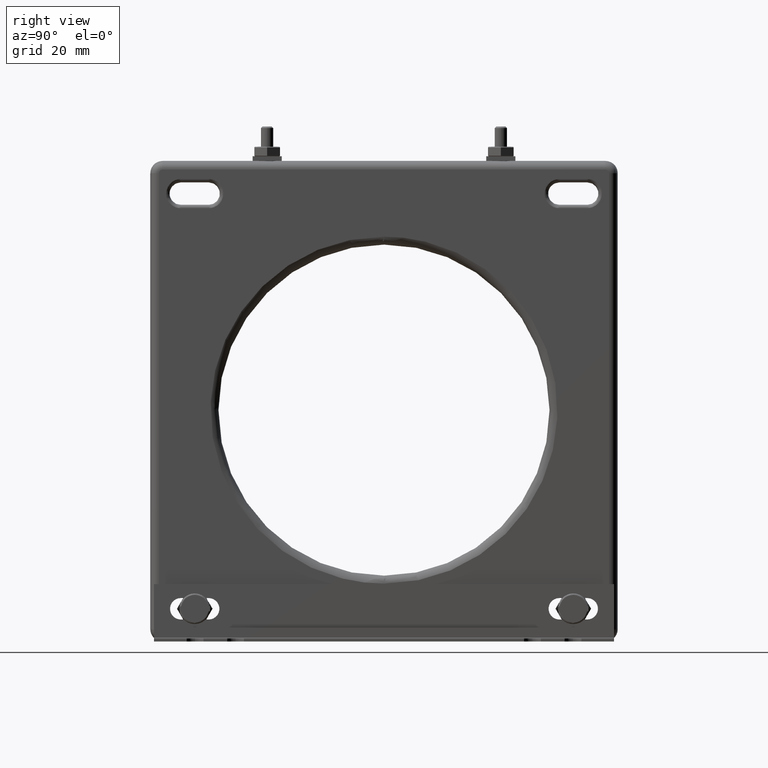
[diagram: clean part render]
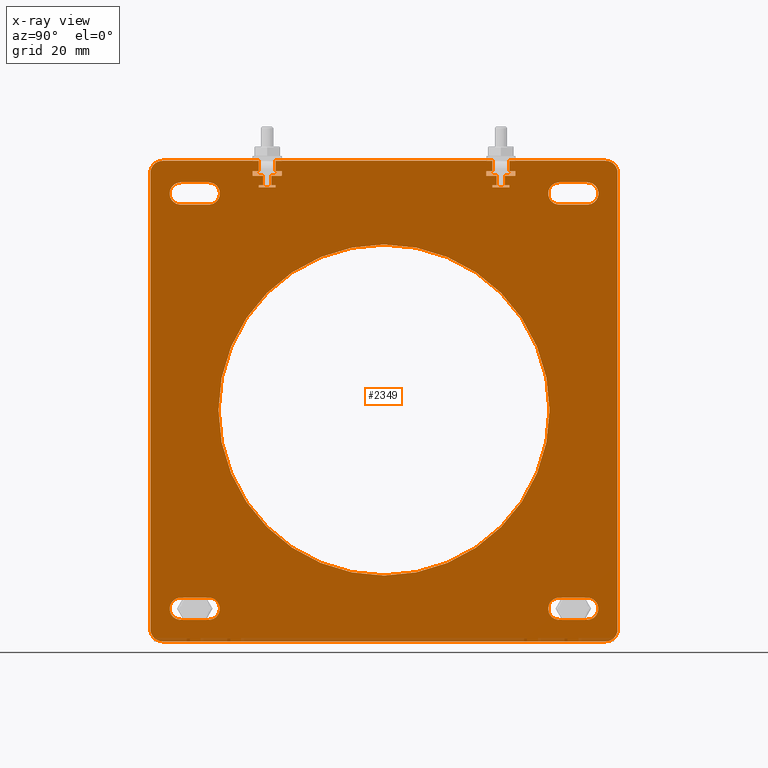
[diagram: x-ray — body ghosted, one internal face saturated and labeled with its STEP entity id]
A machine part, right view, then the same camera in x-ray: the body is ghosted and one INTERNAL B-rep face — a face not visible from any outside direction — is saturated and labeled: STEP entity #2349.
In plain terms, the highlighted planar face has unit normal (1, -0, 0).
Its self-contained STEP definition (entity closure, byte-faithful):
#27 = VERTEX_POINT ( 'NONE', #3057 ) ;
#37 = VECTOR ( 'NONE', #9738, 39.37007874015748143 ) ;
#195 = EDGE_CURVE ( 'NONE', #6412, #8401, #9998, .T. ) ;
#208 = CARTESIAN_POINT ( 'NONE',  ( 0.6122047244105642827, -2.250787401574803503, 2.923324115572861981 ) ) ;
#215 = ORIENTED_EDGE ( 'NONE', *, *, #12208, .T. ) ;
#238 = LINE ( 'NONE', #5233, #10344 ) ;
#252 = AXIS2_PLACEMENT_3D ( 'NONE', #2736, #7990, #8879 ) ;
#282 = CARTESIAN_POINT ( 'NONE',  ( 0.6122047244094488416, 1.312992125984252079, 0.000000000000000000 ) ) ;
#327 = DIRECTION ( 'NONE',  ( -0.000000000000000000, -0.000000000000000000, 1.000000000000000000 ) ) ;
#369 = EDGE_CURVE ( 'NONE', #3639, #3918, #12381, .T. ) ;
#388 = DIRECTION ( 'NONE',  ( -0.000000000000000000, -1.000000000000000000, -0.000000000000000000 ) ) ;
#395 = VERTEX_POINT ( 'NONE', #10206 ) ;
#441 = VERTEX_POINT ( 'NONE', #7584 ) ;
#469 = VECTOR ( 'NONE', #2078, 39.37007874015748143 ) ;
#478 = CARTESIAN_POINT ( 'NONE',  ( 0.6122047244094488416, 1.312992125984252079, 3.066141732283464094 ) ) ;
#479 = DIRECTION ( 'NONE',  ( 0.000000000000000000, 0.000000000000000000, 1.000000000000000000 ) ) ;
#654 = CARTESIAN_POINT ( 'NONE',  ( 0.6122047244094488416, -1.391893462852389796, 3.066141732283464094 ) ) ;
#689 = VERTEX_POINT ( 'NONE', #2115 ) ;
#705 = ORIENTED_EDGE ( 'NONE', *, *, #6821, .T. ) ;
#731 = VERTEX_POINT ( 'NONE', #4020 ) ;
#745 = VECTOR ( 'NONE', #13287, 39.37007874015748143 ) ;
#749 = VERTEX_POINT ( 'NONE', #11194 ) ;
#798 = LINE ( 'NONE', #4967, #1383 ) ;
#809 = LINE ( 'NONE', #12345, #1412 ) ;
#818 = CARTESIAN_POINT ( 'NONE',  ( 0.6122047244094488416, 1.687007874015748143, 3.007086614173228423 ) ) ;
#827 = VERTEX_POINT ( 'NONE', #5521 ) ;
#841 = VECTOR ( 'NONE', #11479, 39.37007874015748143 ) ;
#869 = LINE ( 'NONE', #2104, #745 ) ;
#965 = VECTOR ( 'NONE', #2184, 39.37007874015748143 ) ;
#970 = VECTOR ( 'NONE', #12770, 39.37007874015748143 ) ;
#977 = EDGE_LOOP ( 'NONE', ( #4155, #4124 ) ) ;
#1052 = EDGE_CURVE ( 'NONE', #12802, #7217, #869, .T. ) ;
#1133 = CIRCLE ( 'NONE', #3747, 0.1437178163602570724 ) ;
#1148 = LINE ( 'NONE', #3201, #3144 ) ;
#1173 = EDGE_CURVE ( 'NONE', #3661, #7647, #2488, .T. ) ;
#1175 = DIRECTION ( 'NONE',  ( 0.000000000000000000, 1.000000000000000000, 0.000000000000000000 ) ) ;
#1189 = ORIENTED_EDGE ( 'NONE', *, *, #2338, .T. ) ;
#1194 = LINE ( 'NONE', #5366, #7497 ) ;
#1254 = CARTESIAN_POINT ( 'NONE',  ( 0.6122047244105642827, -2.250787401574799507, -2.406597144269654542 ) ) ;
#1288 = LINE ( 'NONE', #11734, #13335 ) ;
#1307 = ORIENTED_EDGE ( 'NONE', *, *, #4216, .T. ) ;
#1343 = VECTOR ( 'NONE', #7562, 39.37007874015748143 ) ;
#1344 = VECTOR ( 'NONE', #327, 39.37007874015748143 ) ;
#1355 = VERTEX_POINT ( 'NONE', #5640 ) ;
#1361 = EDGE_CURVE ( 'NONE', #3448, #7046, #2631, .T. ) ;
#1383 = VECTOR ( 'NONE', #11312, 39.37007874015748143 ) ;
#1408 = LINE ( 'NONE', #2373, #10510 ) ;
#1412 = VECTOR ( 'NONE', #11465, 39.37007874015748143 ) ;
#1419 = CARTESIAN_POINT ( 'NONE',  ( 0.6122047244116831655, 2.609055118110235938, 2.635888482852344783 ) ) ;
#1435 = CARTESIAN_POINT ( 'NONE',  ( 0.6122047244094488416, 1.446189224673872786, 3.007086614173228423 ) ) ;
#1462 = VERTEX_POINT ( 'NONE', #12045 ) ;
#1472 = VERTEX_POINT ( 'NONE', #2698 ) ;
#1488 = LINE ( 'NONE', #6689, #10785 ) ;
#1500 = DIRECTION ( 'NONE',  ( -1.000000000000000000, 0.000000000000000000, 0.000000000000000000 ) ) ;
#1533 = EDGE_CURVE ( 'NONE', #8344, #6412, #2399, .T. ) ;
#1586 = FACE_BOUND ( 'NONE', #10187, .T. ) ;
#1595 = VERTEX_POINT ( 'NONE', #12452 ) ;
#1649 = EDGE_CURVE ( 'NONE', #11976, #9718, #10477, .T. ) ;
#1670 = CARTESIAN_POINT ( 'NONE',  ( 0.6122047244098194341, 2.250787401574803503, 2.923324115572870863 ) ) ;
#1699 = EDGE_CURVE ( 'NONE', #827, #731, #4196, .T. ) ;
#1718 = DIRECTION ( 'NONE',  ( 1.000000000000000000, 0.000000000000000000, 0.000000000000000000 ) ) ;
#1752 = CARTESIAN_POINT ( 'NONE',  ( 0.6122047244098194341, 2.250787401574803503, -2.694032776990192612 ) ) ;
#1820 = VERTEX_POINT ( 'NONE', #2109 ) ;
#1836 = EDGE_CURVE ( 'NONE', #7046, #3086, #7159, .T. ) ;
#1860 = DIRECTION ( 'NONE',  ( -1.000000000000000000, 0.000000000000000000, 0.000000000000000000 ) ) ;
#1868 = EDGE_CURVE ( 'NONE', #12046, #3448, #12743, .T. ) ;
#1889 = VECTOR ( 'NONE', #9384, 39.37007874015748143 ) ;
#1894 = CIRCLE ( 'NONE', #4507, 0.1574287678709242466 ) ;
#1968 = CARTESIAN_POINT ( 'NONE',  ( 0.6122047244094488416, 8.195543980992795572E-16, 3.066141732283464094 ) ) ;
#1979 = DIRECTION ( 'NONE',  ( 0.000000000000000000, 0.000000000000000000, -1.000000000000000000 ) ) ;
#2020 = DIRECTION ( 'NONE',  ( -1.000000000000000000, 0.000000000000000000, 0.000000000000000000 ) ) ;
#2025 = ORIENTED_EDGE ( 'NONE', *, *, #8714, .T. ) ;
#2078 = DIRECTION ( 'NONE',  ( 0.000000000000000000, 1.000000000000000000, 0.000000000000000000 ) ) ;
#2079 = ORIENTED_EDGE ( 'NONE', *, *, #4535, .T. ) ;
#2104 = CARTESIAN_POINT ( 'NONE',  ( 0.6122047244094488416, -1.312992125984248082, 0.000000000000000000 ) ) ;
#2109 = CARTESIAN_POINT ( 'NONE',  ( 0.6122047244094488416, -1.608106537147602211, 3.199239791492975105 ) ) ;
#2115 = CARTESIAN_POINT ( 'NONE',  ( 0.6122047244094488416, -1.553810775326125437, 3.007086614173228423 ) ) ;
#2121 = CARTESIAN_POINT ( 'NONE',  ( 0.6122047244098194341, 2.842519685039371691, 3.199239791492984430 ) ) ;
#2153 = DIRECTION ( 'NONE',  ( 0.000000000000000000, 1.000000000000000000, 0.000000000000000000 ) ) ;
#2184 = DIRECTION ( 'NONE',  ( -0.000000000000000000, -0.000000000000000000, 1.000000000000000000 ) ) ;
#2215 = CIRCLE ( 'NONE', #252, 0.1437178163602761960 ) ;
#2240 = CARTESIAN_POINT ( 'NONE',  ( 0.6122047244094488416, 8.195543980992795572E-16, 3.199239791492976437 ) ) ;
#2266 = DIRECTION ( 'NONE',  ( -0.000000000000000000, -0.000000000000000000, 1.000000000000000000 ) ) ;
#2277 = VERTEX_POINT ( 'NONE', #1254 ) ;
#2301 = CARTESIAN_POINT ( 'NONE',  ( 0.6122047244101900265, 2.250787401574803503, 2.779606299212598941 ) ) ;
#2318 = DIRECTION ( 'NONE',  ( 0.000000000000000000, 1.000000000000000000, 0.000000000000000000 ) ) ;
#2338 = EDGE_CURVE ( 'NONE', #11347, #13281, #4475, .T. ) ;
#2339 = ORIENTED_EDGE ( 'NONE', *, *, #11865, .T. ) ;
#2341 = VERTEX_POINT ( 'NONE', #10555 ) ;
#2349 = ADVANCED_FACE ( 'NONE', ( #8763, #12032, #3711, #7878, #2558, #1586 ), #2754, .T. ) ;
#2373 = CARTESIAN_POINT ( 'NONE',  ( 0.6122047244094488416, 8.195543980992795572E-16, 2.888976377952756192 ) ) ;
#2399 = CIRCLE ( 'NONE', #9597, 0.1437178163602761960 ) ;
#2406 = VERTEX_POINT ( 'NONE', #6854 ) ;
#2416 = CARTESIAN_POINT ( 'NONE',  ( 0.6122047244094488416, -1.608106537147602433, 3.066141732283464094 ) ) ;
#2446 = VECTOR ( 'NONE', #12071, 39.37007874015748143 ) ;
#2468 = DIRECTION ( 'NONE',  ( -0.000000000000000000, -0.000000000000000000, 1.000000000000000000 ) ) ;
#2481 = ORIENTED_EDGE ( 'NONE', *, *, #5185, .T. ) ;
#2488 = CIRCLE ( 'NONE', #3793, 2.125017178873584545 ) ;
#2541 = CARTESIAN_POINT ( 'NONE',  ( 0.6122047244101900265, -2.609055118110232385, -2.550314960629921579 ) ) ;
#2555 = EDGE_CURVE ( 'NONE', #10582, #12046, #3021, .T. ) ;
#2558 = FACE_BOUND ( 'NONE', #12849, .T. ) ;
#2565 = DIRECTION ( 'NONE',  ( -0.000000000000000000, -1.000000000000000000, -0.000000000000000000 ) ) ;
#2569 = CARTESIAN_POINT ( 'NONE',  ( 0.6122047244094488416, 1.608106537147606430, 0.000000000000000000 ) ) ;
#2603 = DIRECTION ( 'NONE',  ( -0.000000000000000000, -1.000000000000000000, -0.000000000000000000 ) ) ;
#2631 = LINE ( 'NONE', #2569, #37 ) ;
#2698 = CARTESIAN_POINT ( 'NONE',  ( 0.6122047244098194341, -2.999948452910306873, 3.041811023622048360 ) ) ;
#2708 = ORIENTED_EDGE ( 'NONE', *, *, #3339, .T. ) ;
#2736 = CARTESIAN_POINT ( 'NONE',  ( 0.6122047244101900265, -2.250787401574799507, -2.550314960629921579 ) ) ;
#2754 = PLANE ( 'NONE',  #5866 ) ;
#2770 = EDGE_CURVE ( 'NONE', #1595, #10101, #3697, .T. ) ;
#2852 = CARTESIAN_POINT ( 'NONE',  ( 0.6122047244094488416, 1.608106537147605986, 3.199239791492975105 ) ) ;
#2857 = EDGE_CURVE ( 'NONE', #12934, #7325, #7040, .T. ) ;
#2925 = CARTESIAN_POINT ( 'NONE',  ( 0.6122047244094452889, 2.842519685039373911, -2.969948452910292858 ) ) ;
#3003 = EDGE_LOOP ( 'NONE', ( #5155, #9227, #5345, #3920, #4514, #5698, #6672, #3770, #3858, #6110, #10224, #4230, #3005, #12913, #11528, #10334, #10441, #4447, #10253, #8623, #11830, #4628, #4997, #9107, #2481, #2339, #4594, #1307, #9250, #13008, #6444, #5649, #12718, #10412, #8625, #2708, #12450, #3885, #2079, #9929 ) ) ;
#3005 = ORIENTED_EDGE ( 'NONE', *, *, #1868, .T. ) ;
#3021 = CIRCLE ( 'NONE', #4761, 0.1574287678709307969 ) ;
#3057 = CARTESIAN_POINT ( 'NONE',  ( 0.6122047244094488416, -1.391893462852389796, 3.199239791492975105 ) ) ;
#3086 = VERTEX_POINT ( 'NONE', #6878 ) ;
#3091 = CARTESIAN_POINT ( 'NONE',  ( 0.6122047244094568352, 8.195543980992795572E-16, 2.125017178873584545 ) ) ;
#3101 = VECTOR ( 'NONE', #4948, 39.37007874015748143 ) ;
#3141 = AXIS2_PLACEMENT_3D ( 'NONE', #2301, #7360, #9482 ) ;
#3144 = VECTOR ( 'NONE', #4359, 39.37007874015748143 ) ;
#3201 = CARTESIAN_POINT ( 'NONE',  ( 0.6122047244094488416, -1.553810775326125881, 0.000000000000000000 ) ) ;
#3216 = LINE ( 'NONE', #12356, #6055 ) ;
#3292 = CARTESIAN_POINT ( 'NONE',  ( 0.6122047244098194341, -2.842519685039370803, 3.199239791492984430 ) ) ;
#3306 = DIRECTION ( 'NONE',  ( -0.000000000000000000, -0.000000000000000000, 1.000000000000000000 ) ) ;
#3311 = VECTOR ( 'NONE', #7208, 39.37007874015748143 ) ;
#3336 = DIRECTION ( 'NONE',  ( 0.000000000000000000, 1.000000000000000000, 0.000000000000000000 ) ) ;
#3337 = DIRECTION ( 'NONE',  ( 0.000000000000000000, 0.000000000000000000, 1.000000000000000000 ) ) ;
#3339 = EDGE_CURVE ( 'NONE', #395, #8404, #798, .T. ) ;
#3405 = VECTOR ( 'NONE', #5488, 39.37007874015748143 ) ;
#3413 = CARTESIAN_POINT ( 'NONE',  ( 0.6122047244098194341, -2.842519685039371247, -2.969948452910307957 ) ) ;
#3448 = VERTEX_POINT ( 'NONE', #2852 ) ;
#3480 = LINE ( 'NONE', #11738, #9252 ) ;
#3505 = DIRECTION ( 'NONE',  ( 0.000000000000000000, 0.000000000000000000, -1.000000000000000000 ) ) ;
#3518 = ORIENTED_EDGE ( 'NONE', *, *, #7893, .T. ) ;
#3548 = DIRECTION ( 'NONE',  ( -0.000000000000000000, -0.000000000000000000, 1.000000000000000000 ) ) ;
#3557 = AXIS2_PLACEMENT_3D ( 'NONE', #4502, #12687, #3337 ) ;
#3639 = VERTEX_POINT ( 'NONE', #1670 ) ;
#3661 = VERTEX_POINT ( 'NONE', #13070 ) ;
#3697 = LINE ( 'NONE', #6560, #9660 ) ;
#3711 = FACE_BOUND ( 'NONE', #11897, .T. ) ;
#3738 = CARTESIAN_POINT ( 'NONE',  ( 0.6122047244094488416, 1.312992125984252079, 3.007086614173228423 ) ) ;
#3747 = AXIS2_PLACEMENT_3D ( 'NONE', #5116, #4296, #8457 ) ;
#3753 = EDGE_CURVE ( 'NONE', #3086, #12020, #4898, .T. ) ;
#3770 = ORIENTED_EDGE ( 'NONE', *, *, #12096, .T. ) ;
#3771 = VECTOR ( 'NONE', #8200, 39.37007874015748143 ) ;
#3793 = AXIS2_PLACEMENT_3D ( 'NONE', #4007, #8176, #10290 ) ;
#3853 = CARTESIAN_POINT ( 'NONE',  ( 0.6122047244094488416, 8.195543980992795572E-16, 2.923324115572873971 ) ) ;
#3858 = ORIENTED_EDGE ( 'NONE', *, *, #6891, .T. ) ;
#3873 = EDGE_CURVE ( 'NONE', #7217, #8102, #13414, .T. ) ;
#3885 = ORIENTED_EDGE ( 'NONE', *, *, #1699, .T. ) ;
#3916 = EDGE_CURVE ( 'NONE', #7325, #11347, #8699, .T. ) ;
#3918 = VERTEX_POINT ( 'NONE', #5163 ) ;
#3920 = ORIENTED_EDGE ( 'NONE', *, *, #4551, .T. ) ;
#3932 = LINE ( 'NONE', #12891, #5430 ) ;
#3962 = CARTESIAN_POINT ( 'NONE',  ( 0.6122047244094488416, 8.195543980992795572E-16, 2.635888482852322579 ) ) ;
#3985 = DIRECTION ( 'NONE',  ( 0.000000000000000000, 1.000000000000000000, 0.000000000000000000 ) ) ;
#4007 = CARTESIAN_POINT ( 'NONE',  ( 0.6122047244094568352, 8.195543980992795572E-16, 0.000000000000000000 ) ) ;
#4020 = CARTESIAN_POINT ( 'NONE',  ( 0.6122047244094488416, -1.608106537147602433, 2.888976377952756192 ) ) ;
#4054 = ORIENTED_EDGE ( 'NONE', *, *, #9920, .T. ) ;
#4065 = DIRECTION ( 'NONE',  ( 0.000000000000000000, 0.000000000000000000, 1.000000000000000000 ) ) ;
#4124 = ORIENTED_EDGE ( 'NONE', *, *, #1173, .T. ) ;
#4155 = ORIENTED_EDGE ( 'NONE', *, *, #10664, .T. ) ;
#4196 = LINE ( 'NONE', #10546, #3405 ) ;
#4216 = EDGE_CURVE ( 'NONE', #9718, #11217, #1288, .T. ) ;
#4230 = ORIENTED_EDGE ( 'NONE', *, *, #2555, .T. ) ;
#4296 = DIRECTION ( 'NONE',  ( -1.000000000000000000, 0.000000000000000000, 0.000000000000000000 ) ) ;
#4297 = VECTOR ( 'NONE', #9342, 39.37007874015748143 ) ;
#4323 = CARTESIAN_POINT ( 'NONE',  ( 0.6122047244098194341, 2.999948452910308205, -2.812519685039371442 ) ) ;
#4338 = VECTOR ( 'NONE', #13342, 39.37007874015748143 ) ;
#4353 = EDGE_CURVE ( 'NONE', #1472, #2406, #10169, .T. ) ;
#4359 = DIRECTION ( 'NONE',  ( -0.000000000000000000, -0.000000000000000000, 1.000000000000000000 ) ) ;
#4368 = LINE ( 'NONE', #10446, #12310 ) ;
#4371 = CARTESIAN_POINT ( 'NONE',  ( 0.6122047244094488416, 8.195543980992795572E-16, 2.888976377952756192 ) ) ;
#4429 = EDGE_CURVE ( 'NONE', #13281, #12934, #1133, .T. ) ;
#4447 = ORIENTED_EDGE ( 'NONE', *, *, #8037, .T. ) ;
#4454 = LINE ( 'NONE', #7651, #970 ) ;
#4475 = LINE ( 'NONE', #8635, #6086 ) ;
#4502 = CARTESIAN_POINT ( 'NONE',  ( 0.6122047244101900265, 2.609055118110235938, 2.779606299212598941 ) ) ;
#4507 = AXIS2_PLACEMENT_3D ( 'NONE', #11077, #1718, #5890 ) ;
#4514 = ORIENTED_EDGE ( 'NONE', *, *, #10782, .T. ) ;
#4528 = VERTEX_POINT ( 'NONE', #5452 ) ;
#4535 = EDGE_CURVE ( 'NONE', #731, #1355, #1408, .T. ) ;
#4551 = EDGE_CURVE ( 'NONE', #10101, #1820, #9548, .T. ) ;
#4594 = ORIENTED_EDGE ( 'NONE', *, *, #1649, .T. ) ;
#4604 = CARTESIAN_POINT ( 'NONE',  ( 0.6122047244094488416, 8.195543980992795572E-16, 0.000000000000000000 ) ) ;
#4628 = ORIENTED_EDGE ( 'NONE', *, *, #9972, .T. ) ;
#4670 = LINE ( 'NONE', #8005, #6831 ) ;
#4761 = AXIS2_PLACEMENT_3D ( 'NONE', #10261, #11354, #8284 ) ;
#4815 = VERTEX_POINT ( 'NONE', #654 ) ;
#4833 = VECTOR ( 'NONE', #1979, 39.37007874015748143 ) ;
#4898 = LINE ( 'NONE', #12121, #9792 ) ;
#4911 = CARTESIAN_POINT ( 'NONE',  ( 0.6122047244094488416, -1.391893462852389796, 2.857480314960630263 ) ) ;
#4948 = DIRECTION ( 'NONE',  ( -0.000000000000000000, -1.000000000000000000, -0.000000000000000000 ) ) ;
#4962 = CARTESIAN_POINT ( 'NONE',  ( 0.6122047244094488416, 8.195543980992795572E-16, -2.406597144269649657 ) ) ;
#4967 = CARTESIAN_POINT ( 'NONE',  ( 0.6122047244094488416, -1.391893462852389796, 0.000000000000000000 ) ) ;
#4997 = ORIENTED_EDGE ( 'NONE', *, *, #13242, .T. ) ;
#5035 = ORIENTED_EDGE ( 'NONE', *, *, #1533, .T. ) ;
#5054 = DIRECTION ( 'NONE',  ( 0.000000000000000000, 0.000000000000000000, -1.000000000000000000 ) ) ;
#5088 = CARTESIAN_POINT ( 'NONE',  ( 0.6122047244101900265, 2.609055118110235938, -2.550314960629921579 ) ) ;
#5116 = CARTESIAN_POINT ( 'NONE',  ( 0.6122047244101900265, -2.250787401574803503, 2.779606299212598941 ) ) ;
#5128 = DIRECTION ( 'NONE',  ( 1.000000000000000000, 0.000000000000000000, 0.000000000000000000 ) ) ;
#5155 = ORIENTED_EDGE ( 'NONE', *, *, #7508, .T. ) ;
#5163 = CARTESIAN_POINT ( 'NONE',  ( 0.6122047244105642827, 2.609055118110235938, 2.923324115572864201 ) ) ;
#5185 = EDGE_CURVE ( 'NONE', #12969, #7081, #13402, .T. ) ;
#5233 = CARTESIAN_POINT ( 'NONE',  ( 0.6122047244094488416, 1.391893462852393570, 0.000000000000000000 ) ) ;
#5257 = EDGE_CURVE ( 'NONE', #749, #395, #8148, .T. ) ;
#5289 = VERTEX_POINT ( 'NONE', #3292 ) ;
#5322 = DIRECTION ( 'NONE',  ( 0.000000000000000000, 1.000000000000000000, 0.000000000000000000 ) ) ;
#5345 = ORIENTED_EDGE ( 'NONE', *, *, #2770, .T. ) ;
#5366 = CARTESIAN_POINT ( 'NONE',  ( 0.6122047244094488416, 8.195543980992795572E-16, 3.199239791492976437 ) ) ;
#5422 = VERTEX_POINT ( 'NONE', #7865 ) ;
#5430 = VECTOR ( 'NONE', #7084, 39.37007874015748143 ) ;
#5452 = CARTESIAN_POINT ( 'NONE',  ( 0.6122047244105642827, -2.609055118110232385, -2.694032776990191724 ) ) ;
#5488 = DIRECTION ( 'NONE',  ( -0.000000000000000000, -0.000000000000000000, 1.000000000000000000 ) ) ;
#5521 = CARTESIAN_POINT ( 'NONE',  ( 0.6122047244094488416, -1.608106537147602433, 2.857480314960630263 ) ) ;
#5523 = CIRCLE ( 'NONE', #8788, 0.1574287678709242466 ) ;
#5640 = CARTESIAN_POINT ( 'NONE',  ( 0.6122047244094488416, -1.553810775326125437, 2.888976377952756192 ) ) ;
#5649 = ORIENTED_EDGE ( 'NONE', *, *, #1052, .T. ) ;
#5655 = EDGE_CURVE ( 'NONE', #12020, #10288, #11276, .T. ) ;
#5698 = ORIENTED_EDGE ( 'NONE', *, *, #5950, .T. ) ;
#5707 = EDGE_CURVE ( 'NONE', #10813, #4528, #7319, .T. ) ;
#5709 = DIRECTION ( 'NONE',  ( 0.000000000000000000, 0.000000000000000000, -1.000000000000000000 ) ) ;
#5845 = EDGE_CURVE ( 'NONE', #7936, #1595, #3932, .T. ) ;
#5866 = AXIS2_PLACEMENT_3D ( 'NONE', #4604, #9924, #7747 ) ;
#5890 = DIRECTION ( 'NONE',  ( 0.000000000000000000, 0.000000000000000000, -1.000000000000000000 ) ) ;
#5950 = EDGE_CURVE ( 'NONE', #5289, #1472, #10006, .T. ) ;
#5971 = VERTEX_POINT ( 'NONE', #12538 ) ;
#6032 = DIRECTION ( 'NONE',  ( 0.000000000000000000, 0.000000000000000000, 1.000000000000000000 ) ) ;
#6055 = VECTOR ( 'NONE', #12491, 39.37007874015748143 ) ;
#6086 = VECTOR ( 'NONE', #2153, 39.37007874015748143 ) ;
#6110 = ORIENTED_EDGE ( 'NONE', *, *, #12713, .T. ) ;
#6185 = DIRECTION ( 'NONE',  ( 0.000000000000000000, 0.000000000000000000, 1.000000000000000000 ) ) ;
#6351 = AXIS2_PLACEMENT_3D ( 'NONE', #2541, #1500, #479 ) ;
#6365 = CARTESIAN_POINT ( 'NONE',  ( 0.6122047244094488416, 8.195543980992795572E-16, -2.406597144269645661 ) ) ;
#6412 = VERTEX_POINT ( 'NONE', #11494 ) ;
#6424 = DIRECTION ( 'NONE',  ( -0.000000000000000000, -1.000000000000000000, -0.000000000000000000 ) ) ;
#6444 = ORIENTED_EDGE ( 'NONE', *, *, #9436, .T. ) ;
#6481 = CARTESIAN_POINT ( 'NONE',  ( 0.6122047244094488416, -1.446189224673868789, 3.007086614173228423 ) ) ;
#6504 = ORIENTED_EDGE ( 'NONE', *, *, #5707, .T. ) ;
#6560 = CARTESIAN_POINT ( 'NONE',  ( 0.6122047244094488416, 8.195543980992795572E-16, 3.066141732283464094 ) ) ;
#6575 = CARTESIAN_POINT ( 'NONE',  ( 0.6122047244094488416, -1.446189224673869900, 0.000000000000000000 ) ) ;
#6610 = CARTESIAN_POINT ( 'NONE',  ( 0.6122047244094488416, 1.608106537147606430, 3.066141732283464094 ) ) ;
#6642 = VERTEX_POINT ( 'NONE', #8883 ) ;
#6672 = ORIENTED_EDGE ( 'NONE', *, *, #4353, .T. ) ;
#6689 = CARTESIAN_POINT ( 'NONE',  ( 0.6122047244094488416, 8.195543980992795572E-16, 2.857480314960630263 ) ) ;
#6700 = CARTESIAN_POINT ( 'NONE',  ( 0.6122047244094488416, -1.687007874015744591, 3.007086614173228423 ) ) ;
#6804 = VERTEX_POINT ( 'NONE', #3413 ) ;
#6821 = EDGE_CURVE ( 'NONE', #8292, #5971, #3480, .T. ) ;
#6830 = CARTESIAN_POINT ( 'NONE',  ( 0.6122047244094488416, 1.553810775326129212, 2.888976377952756192 ) ) ;
#6831 = VECTOR ( 'NONE', #6982, 39.37007874015748143 ) ;
#6845 = EDGE_CURVE ( 'NONE', #8404, #827, #1488, .T. ) ;
#6854 = CARTESIAN_POINT ( 'NONE',  ( 0.6122047244094452889, -2.999948452910290442, -2.812519685039374551 ) ) ;
#6878 = CARTESIAN_POINT ( 'NONE',  ( 0.6122047244094488416, 1.687007874015748143, 3.066141732283464094 ) ) ;
#6891 = EDGE_CURVE ( 'NONE', #6804, #7271, #4368, .T. ) ;
#6925 = EDGE_CURVE ( 'NONE', #5422, #12969, #12559, .T. ) ;
#6982 = DIRECTION ( 'NONE',  ( -0.000000000000000000, -1.000000000000000000, -0.000000000000000000 ) ) ;
#7011 = VECTOR ( 'NONE', #2565, 39.37007874015748143 ) ;
#7018 = CARTESIAN_POINT ( 'NONE',  ( 0.6122047244094488416, -1.312992125984248082, 3.007086614173228423 ) ) ;
#7027 = CARTESIAN_POINT ( 'NONE',  ( 0.6122047244094488416, -2.999948452910295327, 0.000000000000000000 ) ) ;
#7040 = LINE ( 'NONE', #3962, #3771 ) ;
#7046 = VERTEX_POINT ( 'NONE', #6610 ) ;
#7081 = VERTEX_POINT ( 'NONE', #3738 ) ;
#7084 = DIRECTION ( 'NONE',  ( -0.000000000000000000, -0.000000000000000000, 1.000000000000000000 ) ) ;
#7091 = CIRCLE ( 'NONE', #10146, 2.125017178873584545 ) ;
#7159 = LINE ( 'NONE', #1968, #4297 ) ;
#7169 = LINE ( 'NONE', #11336, #4833 ) ;
#7208 = DIRECTION ( 'NONE',  ( 0.000000000000000000, 1.000000000000000000, 0.000000000000000000 ) ) ;
#7215 = CARTESIAN_POINT ( 'NONE',  ( 0.6122047244101900265, -2.842519685039370358, 3.041811023622047028 ) ) ;
#7217 = VERTEX_POINT ( 'NONE', #7018 ) ;
#7251 = VECTOR ( 'NONE', #3505, 39.37007874015748143 ) ;
#7271 = VERTEX_POINT ( 'NONE', #2925 ) ;
#7319 = LINE ( 'NONE', #9561, #841 ) ;
#7325 = VERTEX_POINT ( 'NONE', #12474 ) ;
#7343 = DIRECTION ( 'NONE',  ( 0.000000000000000000, 0.000000000000000000, -1.000000000000000000 ) ) ;
#7360 = DIRECTION ( 'NONE',  ( -1.000000000000000000, 0.000000000000000000, 0.000000000000000000 ) ) ;
#7394 = CARTESIAN_POINT ( 'NONE',  ( 0.6122047244094488416, -1.312992125984248082, 3.066141732283464094 ) ) ;
#7474 = CARTESIAN_POINT ( 'NONE',  ( 0.6122047244094488416, 8.195543980992795572E-16, 3.066141732283464094 ) ) ;
#7497 = VECTOR ( 'NONE', #8229, 39.37007874015748143 ) ;
#7508 = EDGE_CURVE ( 'NONE', #689, #7936, #4670, .T. ) ;
#7562 = DIRECTION ( 'NONE',  ( 0.000000000000000000, 0.000000000000000000, -1.000000000000000000 ) ) ;
#7584 = CARTESIAN_POINT ( 'NONE',  ( 0.6122047244098194341, 2.250787401574803503, -2.406597144269649213 ) ) ;
#7647 = VERTEX_POINT ( 'NONE', #3091 ) ;
#7651 = CARTESIAN_POINT ( 'NONE',  ( 0.6122047244094488416, 8.195543980992795572E-16, 2.888976377952756192 ) ) ;
#7747 = DIRECTION ( 'NONE',  ( 0.000000000000000000, 0.000000000000000000, -1.000000000000000000 ) ) ;
#7793 = VERTEX_POINT ( 'NONE', #9709 ) ;
#7798 = EDGE_CURVE ( 'NONE', #441, #8344, #12840, .T. ) ;
#7814 = LINE ( 'NONE', #6575, #7251 ) ;
#7820 = EDGE_LOOP ( 'NONE', ( #5035, #10808, #4054, #10915 ) ) ;
#7839 = ORIENTED_EDGE ( 'NONE', *, *, #3916, .T. ) ;
#7865 = CARTESIAN_POINT ( 'NONE',  ( 0.6122047244094488416, 1.446189224673872786, 2.888976377952756192 ) ) ;
#7878 = FACE_BOUND ( 'NONE', #7820, .T. ) ;
#7893 = EDGE_CURVE ( 'NONE', #2277, #10813, #2215, .T. ) ;
#7926 = VERTEX_POINT ( 'NONE', #6830 ) ;
#7936 = VERTEX_POINT ( 'NONE', #6700 ) ;
#7953 = EDGE_CURVE ( 'NONE', #4528, #6642, #12231, .T. ) ;
#7990 = DIRECTION ( 'NONE',  ( -1.000000000000000000, 0.000000000000000000, 0.000000000000000000 ) ) ;
#7996 = DIRECTION ( 'NONE',  ( -0.000000000000000000, -1.000000000000000000, -0.000000000000000000 ) ) ;
#8005 = CARTESIAN_POINT ( 'NONE',  ( 0.6122047244094488416, 8.195543980992795572E-16, 3.007086614173228423 ) ) ;
#8025 = CARTESIAN_POINT ( 'NONE',  ( 0.6122047244094488416, 1.391893462852393570, 3.199239791492975105 ) ) ;
#8037 = EDGE_CURVE ( 'NONE', #10288, #7926, #7169, .T. ) ;
#8102 = VERTEX_POINT ( 'NONE', #6481 ) ;
#8125 = CARTESIAN_POINT ( 'NONE',  ( 0.6122047244094488416, 1.391893462852393570, 2.857480314960630263 ) ) ;
#8148 = LINE ( 'NONE', #11427, #469 ) ;
#8159 = AXIS2_PLACEMENT_3D ( 'NONE', #9257, #10078, #4065 ) ;
#8176 = DIRECTION ( 'NONE',  ( -1.000000000000000000, 0.000000000000000000, 0.000000000000000000 ) ) ;
#8191 = ORIENTED_EDGE ( 'NONE', *, *, #2857, .T. ) ;
#8200 = DIRECTION ( 'NONE',  ( -0.000000000000000000, -1.000000000000000000, -0.000000000000000000 ) ) ;
#8229 = DIRECTION ( 'NONE',  ( -0.000000000000000000, -1.000000000000000000, -0.000000000000000000 ) ) ;
#8230 = VECTOR ( 'NONE', #2318, 39.37007874015748143 ) ;
#8284 = DIRECTION ( 'NONE',  ( 0.000000000000000000, 0.000000000000000000, -1.000000000000000000 ) ) ;
#8292 = VERTEX_POINT ( 'NONE', #1419 ) ;
#8344 = VERTEX_POINT ( 'NONE', #12409 ) ;
#8401 = VERTEX_POINT ( 'NONE', #1752 ) ;
#8404 = VERTEX_POINT ( 'NONE', #4911 ) ;
#8439 = EDGE_CURVE ( 'NONE', #27, #4815, #9607, .T. ) ;
#8457 = DIRECTION ( 'NONE',  ( 0.000000000000000000, 0.000000000000000000, 1.000000000000000000 ) ) ;
#8482 = LINE ( 'NONE', #282, #13352 ) ;
#8623 = ORIENTED_EDGE ( 'NONE', *, *, #11305, .T. ) ;
#8625 = ORIENTED_EDGE ( 'NONE', *, *, #5257, .T. ) ;
#8635 = CARTESIAN_POINT ( 'NONE',  ( 0.6122047244094488416, 8.195543980992795572E-16, 2.923324115572870419 ) ) ;
#8699 = CIRCLE ( 'NONE', #11964, 0.1437178163602570724 ) ;
#8714 = EDGE_CURVE ( 'NONE', #6642, #2277, #13209, .T. ) ;
#8763 = FACE_OUTER_BOUND ( 'NONE', #3003, .T. ) ;
#8788 = AXIS2_PLACEMENT_3D ( 'NONE', #13509, #5128, #5054 ) ;
#8816 = LINE ( 'NONE', #13097, #10355 ) ;
#8879 = DIRECTION ( 'NONE',  ( 0.000000000000000000, 0.000000000000000000, 1.000000000000000000 ) ) ;
#8883 = CARTESIAN_POINT ( 'NONE',  ( 0.6122047244098194341, -2.609055118110047200, -2.406597144269649657 ) ) ;
#9003 = CIRCLE ( 'NONE', #3557, 0.1437178163602570724 ) ;
#9007 = EDGE_CURVE ( 'NONE', #8102, #749, #7814, .T. ) ;
#9014 = CIRCLE ( 'NONE', #3141, 0.1437178163602570724 ) ;
#9049 = DIRECTION ( 'NONE',  ( -1.000000000000000000, 0.000000000000000000, 0.000000000000000000 ) ) ;
#9107 = ORIENTED_EDGE ( 'NONE', *, *, #6925, .T. ) ;
#9116 = CARTESIAN_POINT ( 'NONE',  ( 0.6122047244094488416, 8.195543980992795572E-16, 3.007086614173228423 ) ) ;
#9227 = ORIENTED_EDGE ( 'NONE', *, *, #5845, .T. ) ;
#9250 = ORIENTED_EDGE ( 'NONE', *, *, #11367, .T. ) ;
#9251 = CARTESIAN_POINT ( 'NONE',  ( 0.6122047244098194341, -2.609055118110235938, 2.923324115572869530 ) ) ;
#9252 = VECTOR ( 'NONE', #6424, 39.37007874015748143 ) ;
#9257 = CARTESIAN_POINT ( 'NONE',  ( 0.6122047244101900265, 2.250787401574803503, -2.550314960629921579 ) ) ;
#9299 = VECTOR ( 'NONE', #388, 39.37007874015748143 ) ;
#9342 = DIRECTION ( 'NONE',  ( 0.000000000000000000, 1.000000000000000000, 0.000000000000000000 ) ) ;
#9384 = DIRECTION ( 'NONE',  ( 0.000000000000000000, 1.000000000000000000, 0.000000000000000000 ) ) ;
#9436 = EDGE_CURVE ( 'NONE', #4815, #12802, #809, .T. ) ;
#9482 = DIRECTION ( 'NONE',  ( 0.000000000000000000, 0.000000000000000000, 1.000000000000000000 ) ) ;
#9548 = LINE ( 'NONE', #10702, #1344 ) ;
#9561 = CARTESIAN_POINT ( 'NONE',  ( 0.6122047244094488416, 8.195543980992795572E-16, -2.694032776990197053 ) ) ;
#9597 = AXIS2_PLACEMENT_3D ( 'NONE', #5088, #9049, #11301 ) ;
#9607 = LINE ( 'NONE', #12669, #1343 ) ;
#9660 = VECTOR ( 'NONE', #5322, 39.37007874015748143 ) ;
#9684 = EDGE_CURVE ( 'NONE', #1355, #689, #1148, .T. ) ;
#9693 = LINE ( 'NONE', #4371, #8230 ) ;
#9709 = CARTESIAN_POINT ( 'NONE',  ( 0.6122047244094488416, 1.608106537147606430, 2.857480314960630263 ) ) ;
#9718 = VERTEX_POINT ( 'NONE', #11037 ) ;
#9738 = DIRECTION ( 'NONE',  ( 0.000000000000000000, 0.000000000000000000, -1.000000000000000000 ) ) ;
#9792 = VECTOR ( 'NONE', #5709, 39.37007874015748143 ) ;
#9865 = CARTESIAN_POINT ( 'NONE',  ( 0.6122047244094488416, 8.195543980992795572E-16, -2.694032776990197053 ) ) ;
#9920 = EDGE_CURVE ( 'NONE', #8401, #441, #11221, .T. ) ;
#9924 = DIRECTION ( 'NONE',  ( 1.000000000000000000, -0.000000000000000000, 0.000000000000000000 ) ) ;
#9929 = ORIENTED_EDGE ( 'NONE', *, *, #9684, .T. ) ;
#9972 = EDGE_CURVE ( 'NONE', #10542, #1462, #238, .T. ) ;
#9998 = LINE ( 'NONE', #9865, #7011 ) ;
#10006 = CIRCLE ( 'NONE', #11962, 0.1574287678709307969 ) ;
#10078 = DIRECTION ( 'NONE',  ( -1.000000000000000000, 0.000000000000000000, 0.000000000000000000 ) ) ;
#10101 = VERTEX_POINT ( 'NONE', #2416 ) ;
#10146 = AXIS2_PLACEMENT_3D ( 'NONE', #12503, #1860, #6032 ) ;
#10169 = LINE ( 'NONE', #7027, #2446 ) ;
#10187 = EDGE_LOOP ( 'NONE', ( #2025, #3518, #6504, #12007 ) ) ;
#10206 = CARTESIAN_POINT ( 'NONE',  ( 0.6122047244094488416, -1.391893462852389796, 2.888976377952756192 ) ) ;
#10224 = ORIENTED_EDGE ( 'NONE', *, *, #11780, .T. ) ;
#10253 = ORIENTED_EDGE ( 'NONE', *, *, #10765, .T. ) ;
#10256 = CARTESIAN_POINT ( 'NONE',  ( 0.6122047244094452889, 2.999948452910291774, 3.041811023622052357 ) ) ;
#10261 = CARTESIAN_POINT ( 'NONE',  ( 0.6122047244101900265, 2.842519685039370358, 3.041811023622047028 ) ) ;
#10277 = CARTESIAN_POINT ( 'NONE',  ( 0.6122047244094488416, 1.608106537147606430, 0.000000000000000000 ) ) ;
#10288 = VERTEX_POINT ( 'NONE', #10467 ) ;
#10290 = DIRECTION ( 'NONE',  ( 0.000000000000000000, 0.000000000000000000, 1.000000000000000000 ) ) ;
#10328 = VECTOR ( 'NONE', #7343, 39.37007874015748143 ) ;
#10334 = ORIENTED_EDGE ( 'NONE', *, *, #3753, .T. ) ;
#10344 = VECTOR ( 'NONE', #3306, 39.37007874015748143 ) ;
#10355 = VECTOR ( 'NONE', #2603, 39.37007874015748143 ) ;
#10386 = VERTEX_POINT ( 'NONE', #4323 ) ;
#10410 = ORIENTED_EDGE ( 'NONE', *, *, #369, .T. ) ;
#10412 = ORIENTED_EDGE ( 'NONE', *, *, #9007, .T. ) ;
#10441 = ORIENTED_EDGE ( 'NONE', *, *, #5655, .T. ) ;
#10446 = CARTESIAN_POINT ( 'NONE',  ( 0.6122047244094488416, 8.195543980992795572E-16, -2.969948452910299519 ) ) ;
#10467 = CARTESIAN_POINT ( 'NONE',  ( 0.6122047244094488416, 1.553810775326129212, 3.007086614173228423 ) ) ;
#10477 = LINE ( 'NONE', #7474, #1889 ) ;
#10510 = VECTOR ( 'NONE', #12674, 39.37007874015748143 ) ;
#10542 = VERTEX_POINT ( 'NONE', #8125 ) ;
#10546 = CARTESIAN_POINT ( 'NONE',  ( 0.6122047244094488416, -1.608106537147602433, 0.000000000000000000 ) ) ;
#10555 = CARTESIAN_POINT ( 'NONE',  ( 0.6122047244094488416, 1.608106537147606430, 2.888976377952756192 ) ) ;
#10582 = VERTEX_POINT ( 'NONE', #10256 ) ;
#10664 = EDGE_CURVE ( 'NONE', #7647, #3661, #7091, .T. ) ;
#10702 = CARTESIAN_POINT ( 'NONE',  ( 0.6122047244094488416, -1.608106537147602433, 0.000000000000000000 ) ) ;
#10765 = EDGE_CURVE ( 'NONE', #7926, #2341, #4454, .T. ) ;
#10782 = EDGE_CURVE ( 'NONE', #1820, #5289, #8816, .T. ) ;
#10785 = VECTOR ( 'NONE', #12966, 39.37007874015748143 ) ;
#10808 = ORIENTED_EDGE ( 'NONE', *, *, #195, .T. ) ;
#10813 = VERTEX_POINT ( 'NONE', #13171 ) ;
#10862 = LINE ( 'NONE', #11616, #12292 ) ;
#10915 = ORIENTED_EDGE ( 'NONE', *, *, #7798, .T. ) ;
#10961 = EDGE_CURVE ( 'NONE', #5971, #3639, #9014, .T. ) ;
#11037 = CARTESIAN_POINT ( 'NONE',  ( 0.6122047244094488416, 1.391893462852393570, 3.066141732283464094 ) ) ;
#11077 = CARTESIAN_POINT ( 'NONE',  ( 0.6122047244101900265, 2.842519685039373911, -2.812519685039370110 ) ) ;
#11194 = CARTESIAN_POINT ( 'NONE',  ( 0.6122047244094488416, -1.446189224673868789, 2.888976377952756192 ) ) ;
#11217 = VERTEX_POINT ( 'NONE', #8025 ) ;
#11221 = CIRCLE ( 'NONE', #8159, 0.1437178163602761960 ) ;
#11276 = LINE ( 'NONE', #11341, #12403 ) ;
#11292 = CARTESIAN_POINT ( 'NONE',  ( 0.6122047244094488416, 8.195543980992795572E-16, 3.007086614173228423 ) ) ;
#11301 = DIRECTION ( 'NONE',  ( 0.000000000000000000, 0.000000000000000000, 1.000000000000000000 ) ) ;
#11305 = EDGE_CURVE ( 'NONE', #2341, #7793, #12528, .T. ) ;
#11312 = DIRECTION ( 'NONE',  ( 0.000000000000000000, 0.000000000000000000, -1.000000000000000000 ) ) ;
#11336 = CARTESIAN_POINT ( 'NONE',  ( 0.6122047244094488416, 1.553810775326130100, 0.000000000000000000 ) ) ;
#11341 = CARTESIAN_POINT ( 'NONE',  ( 0.6122047244094488416, 8.195543980992795572E-16, 3.007086614173228423 ) ) ;
#11347 = VERTEX_POINT ( 'NONE', #9251 ) ;
#11354 = DIRECTION ( 'NONE',  ( 1.000000000000000000, 0.000000000000000000, 0.000000000000000000 ) ) ;
#11367 = EDGE_CURVE ( 'NONE', #11217, #27, #1194, .T. ) ;
#11369 = CARTESIAN_POINT ( 'NONE',  ( 0.6122047244101900265, -2.609055118110235938, 2.779606299212598941 ) ) ;
#11427 = CARTESIAN_POINT ( 'NONE',  ( 0.6122047244094488416, 8.195543980992795572E-16, 2.888976377952756192 ) ) ;
#11465 = DIRECTION ( 'NONE',  ( 0.000000000000000000, 1.000000000000000000, 0.000000000000000000 ) ) ;
#11479 = DIRECTION ( 'NONE',  ( -0.000000000000000000, -1.000000000000000000, -0.000000000000000000 ) ) ;
#11494 = CARTESIAN_POINT ( 'NONE',  ( 0.6122047244098194341, 2.609055118110239935, -2.694032776990193945 ) ) ;
#11528 = ORIENTED_EDGE ( 'NONE', *, *, #1836, .T. ) ;
#11596 = CARTESIAN_POINT ( 'NONE',  ( 0.6122047244094488416, 1.446189224673874119, 0.000000000000000000 ) ) ;
#11616 = CARTESIAN_POINT ( 'NONE',  ( 0.6122047244094488416, 2.999948452910299324, 0.000000000000000000 ) ) ;
#11734 = CARTESIAN_POINT ( 'NONE',  ( 0.6122047244094488416, 1.391893462852393570, 0.000000000000000000 ) ) ;
#11738 = CARTESIAN_POINT ( 'NONE',  ( 0.6122047244094488416, 8.195543980992795572E-16, 2.635888482852326575 ) ) ;
#11780 = EDGE_CURVE ( 'NONE', #10386, #10582, #10862, .T. ) ;
#11830 = ORIENTED_EDGE ( 'NONE', *, *, #13094, .T. ) ;
#11865 = EDGE_CURVE ( 'NONE', #7081, #11976, #8482, .T. ) ;
#11892 = CARTESIAN_POINT ( 'NONE',  ( 0.6122047244098194341, -2.250787401574803059, 2.635888482852326131 ) ) ;
#11897 = EDGE_LOOP ( 'NONE', ( #10410, #215, #705, #12300 ) ) ;
#11962 = AXIS2_PLACEMENT_3D ( 'NONE', #7215, #12465, #13351 ) ;
#11964 = AXIS2_PLACEMENT_3D ( 'NONE', #11369, #2020, #6185 ) ;
#11976 = VERTEX_POINT ( 'NONE', #478 ) ;
#12007 = ORIENTED_EDGE ( 'NONE', *, *, #7953, .T. ) ;
#12020 = VERTEX_POINT ( 'NONE', #818 ) ;
#12032 = FACE_BOUND ( 'NONE', #977, .T. ) ;
#12045 = CARTESIAN_POINT ( 'NONE',  ( 0.6122047244094488416, 1.391893462852393570, 2.888976377952756192 ) ) ;
#12046 = VERTEX_POINT ( 'NONE', #2121 ) ;
#12071 = DIRECTION ( 'NONE',  ( 0.000000000000000000, 0.000000000000000000, -1.000000000000000000 ) ) ;
#12096 = EDGE_CURVE ( 'NONE', #2406, #6804, #5523, .T. ) ;
#12121 = CARTESIAN_POINT ( 'NONE',  ( 0.6122047244094488416, 1.687007874015748143, 0.000000000000000000 ) ) ;
#12208 = EDGE_CURVE ( 'NONE', #3918, #8292, #9003, .T. ) ;
#12231 = CIRCLE ( 'NONE', #6351, 0.1437178163602761960 ) ;
#12235 = VECTOR ( 'NONE', #3985, 39.37007874015748143 ) ;
#12264 = ORIENTED_EDGE ( 'NONE', *, *, #4429, .T. ) ;
#12288 = VECTOR ( 'NONE', #1175, 39.37007874015748143 ) ;
#12292 = VECTOR ( 'NONE', #2266, 39.37007874015748143 ) ;
#12300 = ORIENTED_EDGE ( 'NONE', *, *, #10961, .T. ) ;
#12310 = VECTOR ( 'NONE', #3336, 39.37007874015748143 ) ;
#12345 = CARTESIAN_POINT ( 'NONE',  ( 0.6122047244094488416, 8.195543980992795572E-16, 3.066141732283464094 ) ) ;
#12356 = CARTESIAN_POINT ( 'NONE',  ( 0.6122047244094488416, 8.195543980992795572E-16, 2.857480314960630263 ) ) ;
#12381 = LINE ( 'NONE', #3853, #12235 ) ;
#12403 = VECTOR ( 'NONE', #7996, 39.37007874015748143 ) ;
#12409 = CARTESIAN_POINT ( 'NONE',  ( 0.6122047244105642827, 2.609055118110235938, -2.406597144269651434 ) ) ;
#12450 = ORIENTED_EDGE ( 'NONE', *, *, #6845, .T. ) ;
#12452 = CARTESIAN_POINT ( 'NONE',  ( 0.6122047244094488416, -1.687007874015744591, 3.066141732283464094 ) ) ;
#12465 = DIRECTION ( 'NONE',  ( 1.000000000000000000, 0.000000000000000000, 0.000000000000000000 ) ) ;
#12474 = CARTESIAN_POINT ( 'NONE',  ( 0.6122047244098194341, -2.609055118110047200, 2.635888482852322579 ) ) ;
#12491 = DIRECTION ( 'NONE',  ( -0.000000000000000000, -1.000000000000000000, -0.000000000000000000 ) ) ;
#12503 = CARTESIAN_POINT ( 'NONE',  ( 0.6122047244094568352, 8.195543980992795572E-16, 0.000000000000000000 ) ) ;
#12528 = LINE ( 'NONE', #10277, #10328 ) ;
#12538 = CARTESIAN_POINT ( 'NONE',  ( 0.6122047244105642827, 2.250787401574803503, 2.635888482852335901 ) ) ;
#12559 = LINE ( 'NONE', #11596, #965 ) ;
#12669 = CARTESIAN_POINT ( 'NONE',  ( 0.6122047244094488416, -1.391893462852389796, 0.000000000000000000 ) ) ;
#12674 = DIRECTION ( 'NONE',  ( 0.000000000000000000, 1.000000000000000000, 0.000000000000000000 ) ) ;
#12687 = DIRECTION ( 'NONE',  ( -1.000000000000000000, 0.000000000000000000, 0.000000000000000000 ) ) ;
#12713 = EDGE_CURVE ( 'NONE', #7271, #10386, #1894, .T. ) ;
#12718 = ORIENTED_EDGE ( 'NONE', *, *, #3873, .T. ) ;
#12743 = LINE ( 'NONE', #2240, #9299 ) ;
#12770 = DIRECTION ( 'NONE',  ( 0.000000000000000000, 1.000000000000000000, 0.000000000000000000 ) ) ;
#12802 = VERTEX_POINT ( 'NONE', #7394 ) ;
#12840 = LINE ( 'NONE', #6365, #12288 ) ;
#12849 = EDGE_LOOP ( 'NONE', ( #12264, #8191, #7839, #1189 ) ) ;
#12891 = CARTESIAN_POINT ( 'NONE',  ( 0.6122047244094488416, -1.687007874015744147, 0.000000000000000000 ) ) ;
#12913 = ORIENTED_EDGE ( 'NONE', *, *, #1361, .T. ) ;
#12934 = VERTEX_POINT ( 'NONE', #11892 ) ;
#12966 = DIRECTION ( 'NONE',  ( -0.000000000000000000, -1.000000000000000000, -0.000000000000000000 ) ) ;
#12969 = VERTEX_POINT ( 'NONE', #1435 ) ;
#13008 = ORIENTED_EDGE ( 'NONE', *, *, #8439, .T. ) ;
#13070 = CARTESIAN_POINT ( 'NONE',  ( 0.6122047244094568352, 1.080047914229829821E-15, -2.125017178873584545 ) ) ;
#13094 = EDGE_CURVE ( 'NONE', #7793, #10542, #3216, .T. ) ;
#13097 = CARTESIAN_POINT ( 'NONE',  ( 0.6122047244094488416, 8.195543980992795572E-16, 3.199239791492976437 ) ) ;
#13171 = CARTESIAN_POINT ( 'NONE',  ( 0.6122047244116831655, -2.250787401574799507, -2.694032776990182843 ) ) ;
#13209 = LINE ( 'NONE', #4962, #3311 ) ;
#13242 = EDGE_CURVE ( 'NONE', #1462, #5422, #9693, .T. ) ;
#13281 = VERTEX_POINT ( 'NONE', #208 ) ;
#13287 = DIRECTION ( 'NONE',  ( 0.000000000000000000, 0.000000000000000000, -1.000000000000000000 ) ) ;
#13335 = VECTOR ( 'NONE', #3548, 39.37007874015748143 ) ;
#13342 = DIRECTION ( 'NONE',  ( -0.000000000000000000, -1.000000000000000000, -0.000000000000000000 ) ) ;
#13351 = DIRECTION ( 'NONE',  ( 0.000000000000000000, 0.000000000000000000, -1.000000000000000000 ) ) ;
#13352 = VECTOR ( 'NONE', #2468, 39.37007874015748143 ) ;
#13402 = LINE ( 'NONE', #11292, #3101 ) ;
#13414 = LINE ( 'NONE', #9116, #4338 ) ;
#13509 = CARTESIAN_POINT ( 'NONE',  ( 0.6122047244101900265, -2.842519685039370358, -2.812519685039370110 ) ) ;